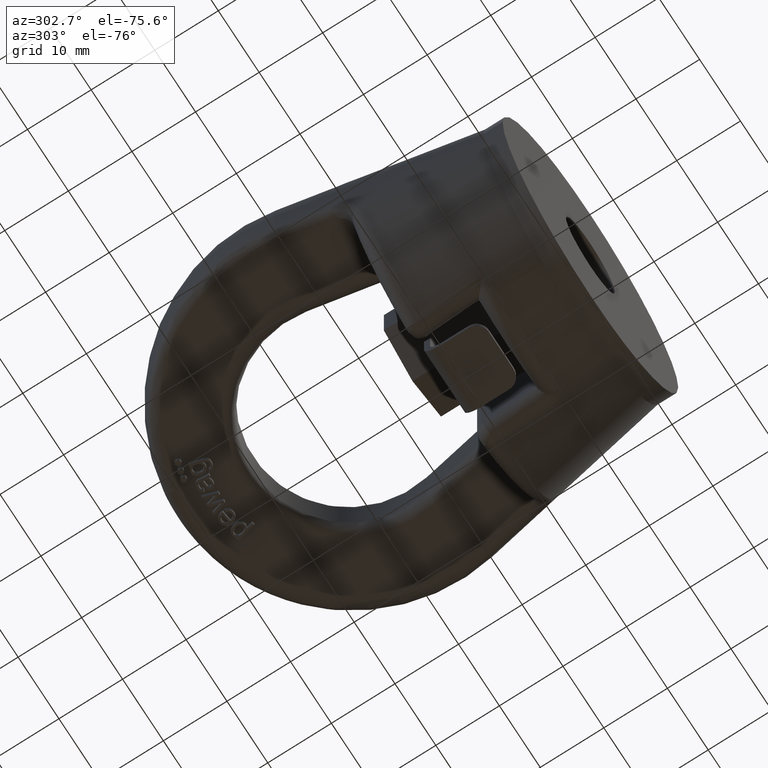
[diagram: clean part render]
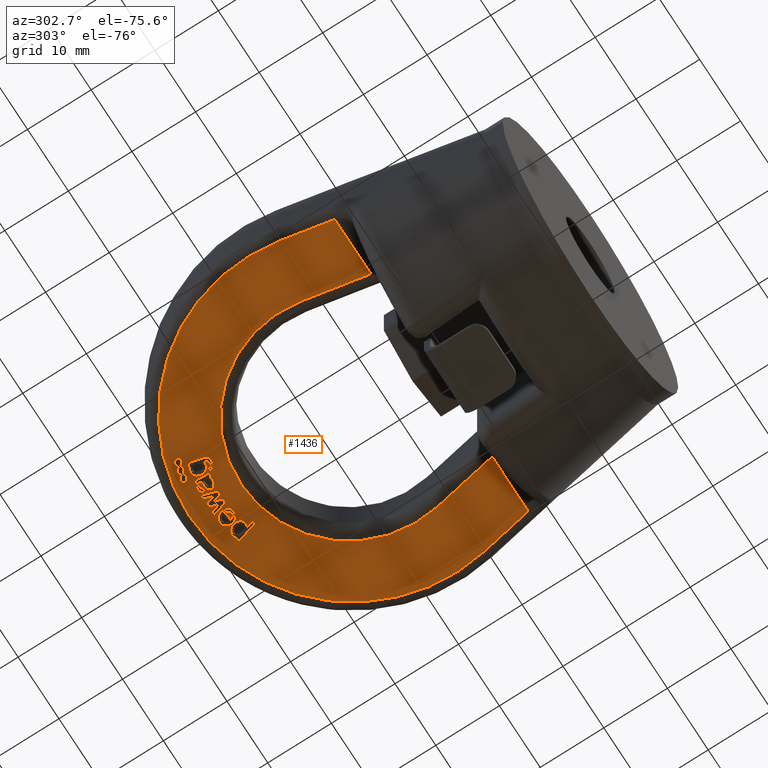
[diagram: same view with one face highlighted and labeled with its STEP entity id]
A machine part, auxiliary view. The second image highlights one B-rep face of the part: STEP entity #1436.
In plain terms, the highlighted planar face has unit normal (-0, -0, 1).
Its self-contained STEP definition (entity closure, byte-faithful):
#1436=ADVANCED_FACE('',(#1805,#1806,#1807,#1808,#1809,#1810,#1811,#1812,
#1813),#1615,.F.);
#1615=PLANE('',#5238);
#1721=CIRCLE('',#5233,0.449999999999999);
#1722=CIRCLE('',#5234,0.449999999999999);
#1723=CIRCLE('',#5235,0.449999999999999);
#1724=CIRCLE('',#5236,17.);
#1725=CIRCLE('',#5237,25.6076160546038);
#1805=FACE_BOUND('',#1962,.T.);
#1806=FACE_BOUND('',#1963,.T.);
#1807=FACE_BOUND('',#1964,.T.);
#1808=FACE_BOUND('',#1965,.T.);
#1809=FACE_BOUND('',#1966,.T.);
#1810=FACE_BOUND('',#1967,.T.);
#1811=FACE_BOUND('',#1968,.T.);
#1812=FACE_BOUND('',#1969,.T.);
#1813=FACE_BOUND('',#1970,.T.);
#1962=EDGE_LOOP('',(#3263,#3264,#3265,#3266,#3267,#3268,#3269));
#1963=EDGE_LOOP('',(#3270,#3271,#3272,#3273,#3274,#3275,#3276,#3277,#3278,
#3279,#3280,#3281,#3282,#3283,#3284));
#1964=EDGE_LOOP('',(#3285,#3286,#3287,#3288,#3289));
#1965=EDGE_LOOP('',(#3290));
#1966=EDGE_LOOP('',(#3291));
#1967=EDGE_LOOP('',(#3292));
#1968=EDGE_LOOP('',(#3293,#3294,#3295,#3296,#3297,#3298,#3299,#3300));
#1969=EDGE_LOOP('',(#3301,#3302,#3303,#3304,#3305,#3306));
#1970=EDGE_LOOP('',(#3307,#3308,#3309,#3310,#3311,#3312,#3313,#3314,#3315));
#2234=LINE('',#8148,#2532);
#2235=LINE('',#8180,#2533);
#2236=LINE('',#8182,#2534);
#2237=LINE('',#8183,#2535);
#2238=LINE('',#8186,#2536);
#2239=LINE('',#8188,#2537);
#2240=LINE('',#8190,#2538);
#2241=LINE('',#8204,#2539);
#2242=LINE('',#8206,#2540);
#2243=LINE('',#8222,#2541);
#2244=LINE('',#8224,#2542);
#2245=LINE('',#8226,#2543);
#2246=LINE('',#8228,#2544);
#2247=LINE('',#8230,#2545);
#2248=LINE('',#8246,#2546);
#2249=LINE('',#8269,#2547);
#2250=LINE('',#8279,#2548);
#2251=LINE('',#8281,#2549);
#2252=LINE('',#8295,#2550);
#2253=LINE('',#8297,#2551);
#2254=LINE('',#8298,#2552);
#2255=LINE('',#8301,#2553);
#2256=LINE('',#8303,#2554);
#2257=LINE('',#8305,#2555);
#2258=LINE('',#8307,#2556);
#2259=LINE('',#8331,#2557);
#2260=LINE('',#8376,#2558);
#2532=VECTOR('',#5799,1.);
#2533=VECTOR('',#5800,1.);
#2534=VECTOR('',#5801,1.);
#2535=VECTOR('',#5802,1.);
#2536=VECTOR('',#5803,1.);
#2537=VECTOR('',#5804,1.);
#2538=VECTOR('',#5805,1.);
#2539=VECTOR('',#5806,1.);
#2540=VECTOR('',#5807,1.);
#2541=VECTOR('',#5808,1.);
#2542=VECTOR('',#5809,1.);
#2543=VECTOR('',#5810,1.);
#2544=VECTOR('',#5811,1.);
#2545=VECTOR('',#5812,1.);
#2546=VECTOR('',#5813,1.);
#2547=VECTOR('',#5814,1.);
#2548=VECTOR('',#5823,1.);
#2549=VECTOR('',#5824,1.);
#2550=VECTOR('',#5827,1.);
#2551=VECTOR('',#5828,1.);
#2552=VECTOR('',#5829,1.);
#2553=VECTOR('',#5830,1.);
#2554=VECTOR('',#5831,1.);
#2555=VECTOR('',#5832,1.);
#2556=VECTOR('',#5833,1.);
#2557=VECTOR('',#5834,1.);
#2558=VECTOR('',#5835,1.);
#3263=ORIENTED_EDGE('',*,*,#4554,.T.);
#3264=ORIENTED_EDGE('',*,*,#4555,.T.);
#3265=ORIENTED_EDGE('',*,*,#4556,.T.);
#3266=ORIENTED_EDGE('',*,*,#4557,.T.);
#3267=ORIENTED_EDGE('',*,*,#4558,.T.);
#3268=ORIENTED_EDGE('',*,*,#4559,.T.);
#3269=ORIENTED_EDGE('',*,*,#4560,.T.);
#3270=ORIENTED_EDGE('',*,*,#4561,.T.);
#3271=ORIENTED_EDGE('',*,*,#4562,.T.);
#3272=ORIENTED_EDGE('',*,*,#4563,.T.);
#3273=ORIENTED_EDGE('',*,*,#4564,.T.);
#3274=ORIENTED_EDGE('',*,*,#4565,.T.);
#3275=ORIENTED_EDGE('',*,*,#4566,.T.);
#3276=ORIENTED_EDGE('',*,*,#4567,.T.);
#3277=ORIENTED_EDGE('',*,*,#4568,.T.);
#3278=ORIENTED_EDGE('',*,*,#4569,.T.);
#3279=ORIENTED_EDGE('',*,*,#4570,.T.);
#3280=ORIENTED_EDGE('',*,*,#4571,.T.);
#3281=ORIENTED_EDGE('',*,*,#4572,.T.);
#3282=ORIENTED_EDGE('',*,*,#4573,.T.);
#3283=ORIENTED_EDGE('',*,*,#4574,.T.);
#3284=ORIENTED_EDGE('',*,*,#4575,.T.);
#3285=ORIENTED_EDGE('',*,*,#4576,.T.);
#3286=ORIENTED_EDGE('',*,*,#4577,.T.);
#3287=ORIENTED_EDGE('',*,*,#4578,.T.);
#3288=ORIENTED_EDGE('',*,*,#4579,.T.);
#3289=ORIENTED_EDGE('',*,*,#4580,.T.);
#3290=ORIENTED_EDGE('',*,*,#4581,.F.);
#3291=ORIENTED_EDGE('',*,*,#4582,.F.);
#3292=ORIENTED_EDGE('',*,*,#4583,.F.);
#3293=ORIENTED_EDGE('',*,*,#4584,.T.);
#3294=ORIENTED_EDGE('',*,*,#4585,.T.);
#3295=ORIENTED_EDGE('',*,*,#4586,.T.);
#3296=ORIENTED_EDGE('',*,*,#4587,.T.);
#3297=ORIENTED_EDGE('',*,*,#4588,.T.);
#3298=ORIENTED_EDGE('',*,*,#4589,.T.);
#3299=ORIENTED_EDGE('',*,*,#4590,.T.);
#3300=ORIENTED_EDGE('',*,*,#4591,.T.);
#3301=ORIENTED_EDGE('',*,*,#4592,.T.);
#3302=ORIENTED_EDGE('',*,*,#4593,.T.);
#3303=ORIENTED_EDGE('',*,*,#4594,.T.);
#3304=ORIENTED_EDGE('',*,*,#4595,.T.);
#3305=ORIENTED_EDGE('',*,*,#4596,.T.);
#3306=ORIENTED_EDGE('',*,*,#4597,.T.);
#3307=ORIENTED_EDGE('',*,*,#4598,.T.);
#3308=ORIENTED_EDGE('',*,*,#4599,.T.);
#3309=ORIENTED_EDGE('',*,*,#4600,.T.);
#3310=ORIENTED_EDGE('',*,*,#4601,.T.);
#3311=ORIENTED_EDGE('',*,*,#4602,.T.);
#3312=ORIENTED_EDGE('',*,*,#4603,.T.);
#3313=ORIENTED_EDGE('',*,*,#4604,.T.);
#3314=ORIENTED_EDGE('',*,*,#4605,.T.);
#3315=ORIENTED_EDGE('',*,*,#4606,.T.);
#4075=VERTEX_POINT('',#8141);
#4076=VERTEX_POINT('',#8142);
#4077=VERTEX_POINT('',#8147);
#4078=VERTEX_POINT('',#8149);
#4079=VERTEX_POINT('',#8162);
#4080=VERTEX_POINT('',#8179);
#4081=VERTEX_POINT('',#8181);
#4082=VERTEX_POINT('',#8184);
#4083=VERTEX_POINT('',#8185);
#4084=VERTEX_POINT('',#8187);
#4085=VERTEX_POINT('',#8189);
#4086=VERTEX_POINT('',#8191);
#4087=VERTEX_POINT('',#8198);
#4088=VERTEX_POINT('',#8203);
#4089=VERTEX_POINT('',#8205);
#4090=VERTEX_POINT('',#8207);
#4091=VERTEX_POINT('',#8214);
#4092=VERTEX_POINT('',#8221);
#4093=VERTEX_POINT('',#8223);
#4094=VERTEX_POINT('',#8225);
#4095=VERTEX_POINT('',#8227);
#4096=VERTEX_POINT('',#8229);
#4097=VERTEX_POINT('',#8239);
#4098=VERTEX_POINT('',#8240);
#4099=VERTEX_POINT('',#8245);
#4100=VERTEX_POINT('',#8247);
#4101=VERTEX_POINT('',#8268);
#4102=VERTEX_POINT('',#8271);
#4103=VERTEX_POINT('',#8273);
#4104=VERTEX_POINT('',#8275);
#4105=VERTEX_POINT('',#8277);
#4106=VERTEX_POINT('',#8278);
#4107=VERTEX_POINT('',#8280);
#4108=VERTEX_POINT('',#8282);
#4109=VERTEX_POINT('',#8287);
#4110=VERTEX_POINT('',#8289);
#4111=VERTEX_POINT('',#8294);
#4112=VERTEX_POINT('',#8296);
#4113=VERTEX_POINT('',#8299);
#4114=VERTEX_POINT('',#8300);
#4115=VERTEX_POINT('',#8302);
#4116=VERTEX_POINT('',#8304);
#4117=VERTEX_POINT('',#8306);
#4118=VERTEX_POINT('',#8308);
#4119=VERTEX_POINT('',#8332);
#4120=VERTEX_POINT('',#8333);
#4121=VERTEX_POINT('',#8338);
#4122=VERTEX_POINT('',#8355);
#4123=VERTEX_POINT('',#8362);
#4124=VERTEX_POINT('',#8375);
#4125=VERTEX_POINT('',#8377);
#4126=VERTEX_POINT('',#8382);
#4127=VERTEX_POINT('',#8395);
#4554=EDGE_CURVE('',#4075,#4076,#4979,.T.);
#4555=EDGE_CURVE('',#4076,#4077,#4980,.T.);
#4556=EDGE_CURVE('',#4077,#4078,#2234,.T.);
#4557=EDGE_CURVE('',#4078,#4079,#4981,.T.);
#4558=EDGE_CURVE('',#4079,#4080,#4982,.T.);
#4559=EDGE_CURVE('',#4080,#4081,#2235,.T.);
#4560=EDGE_CURVE('',#4081,#4075,#2236,.T.);
#4561=EDGE_CURVE('',#4082,#4083,#2237,.T.);
#4562=EDGE_CURVE('',#4083,#4084,#2238,.T.);
#4563=EDGE_CURVE('',#4084,#4085,#2239,.T.);
#4564=EDGE_CURVE('',#4085,#4086,#2240,.T.);
#4565=EDGE_CURVE('',#4086,#4087,#4983,.T.);
#4566=EDGE_CURVE('',#4087,#4088,#4984,.T.);
#4567=EDGE_CURVE('',#4088,#4089,#2241,.T.);
#4568=EDGE_CURVE('',#4089,#4090,#2242,.T.);
#4569=EDGE_CURVE('',#4090,#4091,#4985,.T.);
#4570=EDGE_CURVE('',#4091,#4092,#4986,.T.);
#4571=EDGE_CURVE('',#4092,#4093,#2243,.T.);
#4572=EDGE_CURVE('',#4093,#4094,#2244,.T.);
#4573=EDGE_CURVE('',#4094,#4095,#2245,.T.);
#4574=EDGE_CURVE('',#4095,#4096,#2246,.T.);
#4575=EDGE_CURVE('',#4096,#4082,#2247,.T.);
#4576=EDGE_CURVE('',#4097,#4098,#4987,.T.);
#4577=EDGE_CURVE('',#4098,#4099,#4988,.T.);
#4578=EDGE_CURVE('',#4099,#4100,#2248,.T.);
#4579=EDGE_CURVE('',#4100,#4101,#4989,.T.);
#4580=EDGE_CURVE('',#4101,#4097,#2249,.T.);
#4581=EDGE_CURVE('',#4102,#4102,#1721,.T.);
#4582=EDGE_CURVE('',#4103,#4103,#1722,.T.);
#4583=EDGE_CURVE('',#4104,#4104,#1723,.T.);
#4584=EDGE_CURVE('',#4105,#4106,#1724,.T.);
#4585=EDGE_CURVE('',#4106,#4107,#2250,.T.);
#4586=EDGE_CURVE('',#4107,#4108,#2251,.T.);
#4587=EDGE_CURVE('',#4108,#4109,#4990,.T.);
#4588=EDGE_CURVE('',#4109,#4110,#1725,.T.);
#4589=EDGE_CURVE('',#4110,#4111,#4991,.T.);
#4590=EDGE_CURVE('',#4111,#4112,#2252,.T.);
#4591=EDGE_CURVE('',#4112,#4105,#2253,.T.);
#4592=EDGE_CURVE('',#4113,#4114,#2254,.T.);
#4593=EDGE_CURVE('',#4114,#4115,#2255,.T.);
#4594=EDGE_CURVE('',#4115,#4116,#2256,.T.);
#4595=EDGE_CURVE('',#4116,#4117,#2257,.T.);
#4596=EDGE_CURVE('',#4117,#4118,#2258,.T.);
#4597=EDGE_CURVE('',#4118,#4113,#4992,.T.);
#4598=EDGE_CURVE('',#4119,#4120,#2259,.T.);
#4599=EDGE_CURVE('',#4120,#4121,#4993,.T.);
#4600=EDGE_CURVE('',#4121,#4122,#4994,.T.);
#4601=EDGE_CURVE('',#4122,#4123,#4995,.T.);
#4602=EDGE_CURVE('',#4123,#4124,#4996,.T.);
#4603=EDGE_CURVE('',#4124,#4125,#2260,.T.);
#4604=EDGE_CURVE('',#4125,#4126,#4997,.T.);
#4605=EDGE_CURVE('',#4126,#4127,#4998,.T.);
#4606=EDGE_CURVE('',#4127,#4119,#4999,.T.);
#4979=B_SPLINE_CURVE_WITH_KNOTS('',3,(#8129,#8130,#8131,#8132,#8133,#8134,
#8135,#8136,#8137,#8138,#8139,#8140),.UNSPECIFIED.,.F.,.F.,(4,2,2,2,2,4),
(0.,0.305645754892089,0.470829306249212,0.636012857606335,0.802206343843956,
1.),.UNSPECIFIED.);
#4980=B_SPLINE_CURVE_WITH_KNOTS('',3,(#8143,#8144,#8145,#8146),
 .UNSPECIFIED.,.F.,.F.,(4,4),(0.,1.),.UNSPECIFIED.);
#4981=B_SPLINE_CURVE_WITH_KNOTS('',3,(#8150,#8151,#8152,#8153,#8154,#8155,
#8156,#8157,#8158,#8159,#8160,#8161),.UNSPECIFIED.,.F.,.F.,(4,2,2,2,2,4),
(0.,0.16330465130929,0.382303784248535,0.619375661168202,0.856447538087869,
1.),.UNSPECIFIED.);
#4982=B_SPLINE_CURVE_WITH_KNOTS('',3,(#8163,#8164,#8165,#8166,#8167,#8168,
#8169,#8170,#8171,#8172,#8173,#8174,#8175,#8176,#8177,#8178),
 .UNSPECIFIED.,.F.,.F.,(4,2,2,2,2,2,2,4),(0.,0.139503666745453,0.312880428291717,
0.486257189837984,0.605370995480457,0.723854105689075,0.842337215897695,
1.),.UNSPECIFIED.);
#4983=B_SPLINE_CURVE_WITH_KNOTS('',3,(#8192,#8193,#8194,#8195,#8196,#8197),
 .UNSPECIFIED.,.F.,.F.,(4,2,4),(0.,0.728909607654982,1.),.UNSPECIFIED.);
#4984=B_SPLINE_CURVE_WITH_KNOTS('',3,(#8199,#8200,#8201,#8202),
 .UNSPECIFIED.,.F.,.F.,(4,4),(0.,1.),.UNSPECIFIED.);
#4985=B_SPLINE_CURVE_WITH_KNOTS('',3,(#8208,#8209,#8210,#8211,#8212,#8213),
 .UNSPECIFIED.,.F.,.F.,(4,2,4),(0.,0.752082276025112,1.),.UNSPECIFIED.);
#4986=B_SPLINE_CURVE_WITH_KNOTS('',3,(#8215,#8216,#8217,#8218,#8219,#8220),
 .UNSPECIFIED.,.F.,.F.,(4,2,4),(0.,0.250451922487261,1.),.UNSPECIFIED.);
#4987=B_SPLINE_CURVE_WITH_KNOTS('',3,(#8231,#8232,#8233,#8234,#8235,#8236,
#8237,#8238),.UNSPECIFIED.,.F.,.F.,(4,2,2,4),(0.,0.363477968613208,0.728087675912438,
1.),.UNSPECIFIED.);
#4988=B_SPLINE_CURVE_WITH_KNOTS('',3,(#8241,#8242,#8243,#8244),
 .UNSPECIFIED.,.F.,.F.,(4,4),(0.,1.),.UNSPECIFIED.);
#4989=B_SPLINE_CURVE_WITH_KNOTS('',3,(#8248,#8249,#8250,#8251,#8252,#8253,
#8254,#8255,#8256,#8257,#8258,#8259,#8260,#8261,#8262,#8263,#8264,#8265,
#8266,#8267),.UNSPECIFIED.,.F.,.F.,(4,2,2,2,2,2,2,2,2,4),(0.,0.102921203122038,
0.206156274885323,0.336063021724227,0.465707475917726,0.599570296299733,
0.733433116681743,0.862845255056167,0.992257393430589,1.),.UNSPECIFIED.);
#4990=B_SPLINE_CURVE_WITH_KNOTS('',3,(#8283,#8284,#8285,#8286),
 .UNSPECIFIED.,.F.,.F.,(4,4),(0.,1.),.UNSPECIFIED.);
#4991=B_SPLINE_CURVE_WITH_KNOTS('',3,(#8290,#8291,#8292,#8293),
 .UNSPECIFIED.,.F.,.F.,(4,4),(0.,1.),.UNSPECIFIED.);
#4992=B_SPLINE_CURVE_WITH_KNOTS('',3,(#8309,#8310,#8311,#8312,#8313,#8314,
#8315,#8316,#8317,#8318,#8319,#8320,#8321,#8322,#8323,#8324,#8325,#8326,
#8327,#8328,#8329,#8330),.UNSPECIFIED.,.F.,.F.,(4,2,2,2,2,2,2,2,2,2,4),
(0.,0.0830854503763822,0.165678296755067,0.27327222095649,0.380460889370517,
0.48724868604668,0.60194668988404,0.717055250849195,0.831909514623423,0.915821305508703,
1.),.UNSPECIFIED.);
#4993=B_SPLINE_CURVE_WITH_KNOTS('',3,(#8334,#8335,#8336,#8337),
 .UNSPECIFIED.,.F.,.F.,(4,4),(0.,1.),.UNSPECIFIED.);
#4994=B_SPLINE_CURVE_WITH_KNOTS('',3,(#8339,#8340,#8341,#8342,#8343,#8344,
#8345,#8346,#8347,#8348,#8349,#8350,#8351,#8352,#8353,#8354),
 .UNSPECIFIED.,.F.,.F.,(4,2,2,2,2,2,2,4),(0.,0.121639465164565,0.243930904991194,
0.445161792748239,0.646392680505284,0.76356509616128,0.881519242448374,
1.),.UNSPECIFIED.);
#4995=B_SPLINE_CURVE_WITH_KNOTS('',3,(#8356,#8357,#8358,#8359,#8360,#8361),
 .UNSPECIFIED.,.F.,.F.,(4,2,4),(0.,0.329344693449401,1.),.UNSPECIFIED.);
#4996=B_SPLINE_CURVE_WITH_KNOTS('',3,(#8363,#8364,#8365,#8366,#8367,#8368,
#8369,#8370,#8371,#8372,#8373,#8374),.UNSPECIFIED.,.F.,.F.,(4,2,2,2,2,4),
(0.,0.0173977322142901,0.217983350684955,0.490675035316424,0.745337517658206,
1.),.UNSPECIFIED.);
#4997=B_SPLINE_CURVE_WITH_KNOTS('',3,(#8378,#8379,#8380,#8381),
 .UNSPECIFIED.,.F.,.F.,(4,4),(0.,1.),.UNSPECIFIED.);
#4998=B_SPLINE_CURVE_WITH_KNOTS('',3,(#8383,#8384,#8385,#8386,#8387,#8388,
#8389,#8390,#8391,#8392,#8393,#8394),.UNSPECIFIED.,.F.,.F.,(4,2,2,2,2,4),
(0.,0.201730292707493,0.402155128097317,0.601755169925865,0.800199545078051,
1.),.UNSPECIFIED.);
#4999=B_SPLINE_CURVE_WITH_KNOTS('',3,(#8396,#8397,#8398,#8399,#8400,#8401,
#8402,#8403,#8404,#8405),.UNSPECIFIED.,.F.,.F.,(4,2,2,2,4),(0.,0.161403604805127,
0.32305979741119,0.661780038481084,1.),.UNSPECIFIED.);
#5233=AXIS2_PLACEMENT_3D('',#8270,#5815,#5816);
#5234=AXIS2_PLACEMENT_3D('',#8272,#5817,#5818);
#5235=AXIS2_PLACEMENT_3D('',#8274,#5819,#5820);
#5236=AXIS2_PLACEMENT_3D('',#8276,#5821,#5822);
#5237=AXIS2_PLACEMENT_3D('',#8288,#5825,#5826);
#5238=AXIS2_PLACEMENT_3D('',#8406,#5836,#5837);
#5799=DIRECTION('',(-0.926036898244068,-0.377432991523669,-2.21998654380677E-15));
#5800=DIRECTION('',(-0.240441711768671,0.970663578816961,-4.33807858745518E-16));
#5801=DIRECTION('',(-0.970663578816965,-0.240441711768658,-2.30626271952841E-15));
#5802=DIRECTION('',(0.25867588301808,-0.965964175083536,4.7715598389392E-16));
#5803=DIRECTION('',(0.999999995678886,9.29635859875706E-5,2.34292312412683E-15));
#5804=DIRECTION('',(0.297319028478967,0.954778191678216,8.23997798997137E-16));
#5805=DIRECTION('',(-0.999999995678886,-9.29635860091688E-5,-2.34292312412684E-15));
#5806=DIRECTION('',(-0.266687759387681,0.963782983348834,-4.96218153809294E-16));
#5807=DIRECTION('',(-0.999999995678886,-9.29635860331523E-5,-2.34292312412684E-15));
#5808=DIRECTION('',(-0.999999995678886,-9.29635860446151E-5,-2.34292312412684E-15));
#5809=DIRECTION('',(0.303109223404765,-0.952955822001713,5.82995171931976E-16));
#5810=DIRECTION('',(0.999999995678886,9.29635860567027E-5,2.34292312412684E-15));
#5811=DIRECTION('',(0.260553429481472,0.965459429694197,7.3928458989856E-16));
#5812=DIRECTION('',(0.226101851815541,0.974103666251998,6.5972110818598E-16));
#5813=DIRECTION('',(-0.999955648987409,0.0094180708305311,-2.34155006881194E-15));
#5814=DIRECTION('',(0.991600377783164,-0.129339440157618,2.30597207467451E-15));
#5815=DIRECTION('',(2.34291072916505E-15,1.33440267382831E-16,-1.));
#5816=DIRECTION('',(0.,0.999999999999999,0.));
#5817=DIRECTION('',(2.34291072916505E-15,1.33440267382831E-16,-1.));
#5818=DIRECTION('',(0.,0.999999999999999,0.));
#5819=DIRECTION('',(2.34291072916505E-15,1.33440267382831E-16,-1.));
#5820=DIRECTION('',(0.,0.999999999999999,0.));
#5821=DIRECTION('',(-2.34291072916505E-15,-1.33440267382831E-16,1.));
#5822=DIRECTION('',(-3.62527989531715E-31,1.,1.53063836115601E-16));
#5823=DIRECTION('',(0.184626416135144,-0.982808774108724,3.0141694564706E-16));
#5824=DIRECTION('',(-1.,-6.37234096263326E-16,-2.34291072916505E-15));
#5825=DIRECTION('',(2.34291072916505E-15,1.33440267382831E-16,-1.));
#5826=DIRECTION('',(-3.61004464974269E-31,1.,1.35484964494767E-16));
#5827=DIRECTION('',(-1.,-6.37234096263326E-16,-2.34291072916505E-15));
#5828=DIRECTION('',(0.184626416135144,0.982808774108724,5.63709476853581E-16));
#5829=DIRECTION('',(-0.24026123487932,-0.970708266686889,-6.92442195658625E-16));
#5830=DIRECTION('',(0.970708266686883,-0.240261234879344,2.24222228948588E-15));
#5831=DIRECTION('',(0.240261234879318,0.970708266686889,6.92442195658621E-16));
#5832=DIRECTION('',(-0.970708266686888,0.240261234879322,-2.24222228948589E-15));
#5833=DIRECTION('',(-0.240261234879318,-0.970708266686889,-6.92442195658621E-16));
#5834=DIRECTION('',(0.991576312927648,0.129523803375332,2.34045847329895E-15));
#5835=DIRECTION('',(0.965560779386236,0.260177595713091,2.29694087762396E-15));
#5836=DIRECTION('',(-2.34291072916505E-15,-1.33440267382831E-16,1.));
#5837=DIRECTION('',(0.,1.,1.33573707650214E-16));
#8129=CARTESIAN_POINT('',(-6.20575754336817,59.3063757401385,-6.00000000000002));
#8130=CARTESIAN_POINT('',(-6.05518161335801,58.6985004674489,-6.00000000000002));
#8131=CARTESIAN_POINT('',(-5.90460568334785,58.0906251947592,-6.00000000000002));
#8132=CARTESIAN_POINT('',(-5.67265232057485,57.1542290945497,-6.00000000000001));
#8133=CARTESIAN_POINT('',(-5.5809698240465,56.9302553745607,-6.00000000000001));
#8134=CARTESIAN_POINT('',(-5.37662564480681,56.6899122592701,-6.00000000000001));
#8135=CARTESIAN_POINT('',(-5.2420504243621,56.6078121137664,-6.00000000000001));
#8136=CARTESIAN_POINT('',(-4.90781318724154,56.5224743446232,-6.00000000000001));
#8137=CARTESIAN_POINT('',(-4.71619275367271,56.5277574319655,-6.00000000000001));
#8138=CARTESIAN_POINT('',(-4.24472578209141,56.6445438532996,-6.00000000000001));
#8139=CARTESIAN_POINT('',(-4.0518199735008,56.7524180364342,-6.00000000000001));
#8140=CARTESIAN_POINT('',(-3.92220745020137,56.904703685001,-6.00000000000001));
#8141=CARTESIAN_POINT('',(-6.20575754336817,59.3063757401385,-6.00000000000002));
#8142=CARTESIAN_POINT('',(-3.92220745020137,56.904703685001,-6.00000000000001));
#8143=CARTESIAN_POINT('',(-3.92220745020137,56.904703685001,-6.00000000000001));
#8144=CARTESIAN_POINT('',(-3.79259492690195,57.0569893335678,-6.00000000000001));
#8145=CARTESIAN_POINT('',(-3.75905359406857,57.2463577334012,-6.00000000000001));
#8146=CARTESIAN_POINT('',(-3.82064093689039,57.4722516988339,-6.00000000000001));
#8147=CARTESIAN_POINT('',(-3.82064093689039,57.4722516988339,-6.00000000000001));
#8148=CARTESIAN_POINT('',(-19.7155860339691,50.9938093284806,-6.00000000000005));
#8149=CARTESIAN_POINT('',(-4.16188763482528,57.3331667851621,-6.00000000000001));
#8150=CARTESIAN_POINT('',(-4.16188763482528,57.3331667851621,-6.00000000000001));
#8151=CARTESIAN_POINT('',(-4.1497171360946,57.2223272473401,-6.00000000000001));
#8152=CARTESIAN_POINT('',(-4.17127277304765,57.1339689886217,-6.00000000000001));
#8153=CARTESIAN_POINT('',(-4.30068997402487,56.9797479153108,-6.00000000000001));
#8154=CARTESIAN_POINT('',(-4.41576405205717,56.9160661145281,-6.00000000000001));
#8155=CARTESIAN_POINT('',(-4.74093982506099,56.8355172805211,-6.00000000000001));
#8156=CARTESIAN_POINT('',(-4.87867463331529,56.8361879908635,-6.00000000000001));
#8157=CARTESIAN_POINT('',(-5.09495334067751,56.923350430372,-6.00000000000001));
#8158=CARTESIAN_POINT('',(-5.18017431618492,57.0010722981359,-6.00000000000001));
#8159=CARTESIAN_POINT('',(-5.2786893367955,57.1797755599088,-6.00000000000001));
#8160=CARTESIAN_POINT('',(-5.32549224742334,57.3311489177058,-6.00000000000001));
#8161=CARTESIAN_POINT('',(-5.38173395548938,57.5646922803139,-6.00000000000001));
#8162=CARTESIAN_POINT('',(-5.38173395548938,57.5646922803139,-6.00000000000001));
#8163=CARTESIAN_POINT('',(-5.38173395548938,57.5646922803139,-6.00000000000001));
#8164=CARTESIAN_POINT('',(-5.17679373082311,57.4193753730725,-6.00000000000001));
#8165=CARTESIAN_POINT('',(-4.95626241217821,57.3767523497323,-6.00000000000001));
#8166=CARTESIAN_POINT('',(-4.42415660180832,57.5085595326528,-6.00000000000001));
#8167=CARTESIAN_POINT('',(-4.22107909102038,57.6695552338382,-6.00000000000001));
#8168=CARTESIAN_POINT('',(-4.00188275567911,58.1681999844469,-6.00000000000001));
#8169=CARTESIAN_POINT('',(-3.98296469165896,58.439336781128,-6.00000000000001));
#8170=CARTESIAN_POINT('',(-4.10530763479221,58.9332354401884,-6.00000000000001));
#8171=CARTESIAN_POINT('',(-4.18839672572244,59.1095265753095,-6.00000000000001));
#8172=CARTESIAN_POINT('',(-4.42085924575848,59.4131047639506,-6.00000000000001));
#8173=CARTESIAN_POINT('',(-4.56082942679885,59.5185468657608,-6.00000000000001));
#8174=CARTESIAN_POINT('',(-4.88856330001202,59.6334467307898,-6.00000000000001));
#8175=CARTESIAN_POINT('',(-5.06542948324848,59.6394467022554,-6.00000000000001));
#8176=CARTESIAN_POINT('',(-5.50885099189005,59.529607383155,-6.00000000000001));
#8177=CARTESIAN_POINT('',(-5.6923855412168,59.3774059149407,-6.00000000000001));
#8178=CARTESIAN_POINT('',(-5.8068609440868,59.1347819534282,-6.00000000000001));
#8179=CARTESIAN_POINT('',(-5.8068609440868,59.1347819534282,-6.00000000000002));
#8180=CARTESIAN_POINT('',(-10.879365541723,79.6124912081522,-6.00000000000002));
#8181=CARTESIAN_POINT('',(-5.86996997357635,59.3895532074231,-6.00000000000002));
#8182=CARTESIAN_POINT('',(-24.4906044318537,54.7770619992711,-6.00000000000006));
#8183=CARTESIAN_POINT('',(-5.79504030827169,81.3479594154054,-6.00000000000001));
#8184=CARTESIAN_POINT('',(0.0096987489185673,59.6715282400953,-6.));
#8185=CARTESIAN_POINT('',(0.457306471073097,58.0000425992719,-6.));
#8186=CARTESIAN_POINT('',(-29.4984193641073,57.9972578075654,-6.00000000000007));
#8187=CARTESIAN_POINT('',(0.848534425392183,58.0000789692257,-6.));
#8188=CARTESIAN_POINT('',(2.99159722450602,64.882079204658,-5.99999999999999));
#8189=CARTESIAN_POINT('',(1.52536757645236,60.1735877935451,-6.));
#8190=CARTESIAN_POINT('',(-29.4986214154313,60.1707036922636,-6.00000000000007));
#8191=CARTESIAN_POINT('',(1.13804409273526,60.1735517865649,-6.));
#8192=CARTESIAN_POINT('',(1.13804409273526,60.1735517865649,-6.));
#8193=CARTESIAN_POINT('',(1.02068856010013,59.7552753339073,-6.));
#8194=CARTESIAN_POINT('',(0.903333027464997,59.3369988812496,-6.));
#8195=CARTESIAN_POINT('',(0.74233153783903,58.7631603033725,-6.));
#8196=CARTESIAN_POINT('',(0.698546272178976,58.607637297537,-6.));
#8197=CARTESIAN_POINT('',(0.654830660853532,58.4520947320095,-6.));
#8198=CARTESIAN_POINT('',(0.654830660853532,58.4520947320095,-6.));
#8199=CARTESIAN_POINT('',(0.654830660853532,58.4520947320095,-6.));
#8200=CARTESIAN_POINT('',(0.649362261636551,58.4751180149979,-6.));
#8201=CARTESIAN_POINT('',(0.611084537304787,58.6247691003413,-6.));
#8202=CARTESIAN_POINT('',(0.540778453324445,58.9002806009293,-6.));
#8203=CARTESIAN_POINT('',(0.540778453324445,58.9002806009293,-6.));
#8204=CARTESIAN_POINT('',(-5.73388941644065,81.5763049258935,-6.00000000000001));
#8205=CARTESIAN_POINT('',(0.188476842332037,60.1734635113878,-6.));
#8206=CARTESIAN_POINT('',(-29.4986214154309,60.1707036922629,-6.00000000000007));
#8207=CARTESIAN_POINT('',(-0.196503959023874,60.1734277221918,-6.));
#8208=CARTESIAN_POINT('',(-0.196503959023874,60.1734277221918,-6.));
#8209=CARTESIAN_POINT('',(-0.306831254319944,59.7531053636731,-6.));
#8210=CARTESIAN_POINT('',(-0.417158549616014,59.3327830051544,-6.));
#8211=CARTESIAN_POINT('',(-0.563854328539524,58.773904845254,-6.));
#8212=CARTESIAN_POINT('',(-0.601384756255449,58.6356566407148,-6.));
#8213=CARTESIAN_POINT('',(-0.638334211927131,58.4972546377543,-6.));
#8214=CARTESIAN_POINT('',(-0.638334211927131,58.4972546377543,-6.));
#8215=CARTESIAN_POINT('',(-0.638334211927131,58.4972546377543,-6.));
#8216=CARTESIAN_POINT('',(-0.68051550314733,58.6371842038601,-6.));
#8217=CARTESIAN_POINT('',(-0.72269679436753,58.7771137699659,-6.));
#8218=CARTESIAN_POINT('',(-0.891117506819218,59.3358220630234,-6.));
#8219=CARTESIAN_POINT('',(-1.01744504657318,59.7545742218898,-6.));
#8220=CARTESIAN_POINT('',(-1.1437285270659,60.1733396647988,-6.));
#8221=CARTESIAN_POINT('',(-1.1437285270659,60.1733396647988,-6.));
#8222=CARTESIAN_POINT('',(-29.4986214154307,60.1707036922626,-6.00000000000007));
#8223=CARTESIAN_POINT('',(-1.50840608129148,60.1733057630654,-6.00000000000001));
#8224=CARTESIAN_POINT('',(-8.36282557731381,81.7231579642104,-6.00000000000002));
#8225=CARTESIAN_POINT('',(-0.81711273341544,57.9999241246921,-6.));
#8226=CARTESIAN_POINT('',(-29.4984193641062,57.9972578075634,-6.00000000000007));
#8227=CARTESIAN_POINT('',(-0.427446567337145,57.9999603494564,-6.));
#8228=CARTESIAN_POINT('',(1.87529730649064,66.5325894980421,-6.));
#8229=CARTESIAN_POINT('',(-0.0761652156463533,59.3016046768427,-6.));
#8230=CARTESIAN_POINT('',(1.87714697525323,67.7169650607209,-6.));
#8231=CARTESIAN_POINT('',(3.35202607716546,58.7329249638484,-5.99999999999999));
#8232=CARTESIAN_POINT('',(3.30721731521262,58.4980678234778,-5.99999999999999));
#8233=CARTESIAN_POINT('',(3.21545129474865,58.3258346853053,-5.99999999999999));
#8234=CARTESIAN_POINT('',(2.93757280277485,58.1062751302244,-5.99999999999999));
#8235=CARTESIAN_POINT('',(2.77644761183763,58.0634503873468,-5.99999999999999));
#8236=CARTESIAN_POINT('',(2.45742162968366,58.1050625557687,-5.99999999999999));
#8237=CARTESIAN_POINT('',(2.34583748267764,58.1552192305778,-5.99999999999999));
#8238=CARTESIAN_POINT('',(2.25817779759022,58.2378575086575,-5.99999999999999));
#8239=CARTESIAN_POINT('',(3.35202607716546,58.7329249638484,-5.99999999999999));
#8240=CARTESIAN_POINT('',(2.25817779759022,58.2378575086575,-5.99999999999999));
#8241=CARTESIAN_POINT('',(2.25817779759022,58.2378575086575,-5.99999999999999));
#8242=CARTESIAN_POINT('',(2.17139171021996,58.3211557996652,-5.99999999999999));
#8243=CARTESIAN_POINT('',(2.10932418724048,58.4430238006375,-5.99999999999999));
#8244=CARTESIAN_POINT('',(2.07294808917798,58.6048825378392,-5.99999999999999));
#8245=CARTESIAN_POINT('',(2.07294808917798,58.6048825378392,-6.));
#8246=CARTESIAN_POINT('',(-29.6516030069448,58.903679859093,-6.00000000000007));
#8247=CARTESIAN_POINT('',(1.68282294338977,58.6085569270579,-6.));
#8248=CARTESIAN_POINT('',(1.68282294338977,58.6085569270579,-6.));
#8249=CARTESIAN_POINT('',(1.71520918651607,58.3798840271064,-6.));
#8250=CARTESIAN_POINT('',(1.80515361616618,58.1940109670633,-6.));
#8251=CARTESIAN_POINT('',(2.10060867269325,57.907428210507,-6.));
#8252=CARTESIAN_POINT('',(2.30206258389828,57.8196123490717,-6.));
#8253=CARTESIAN_POINT('',(2.87739342064681,57.74456904534,-5.99999999999999));
#8254=CARTESIAN_POINT('',(3.14398164726294,57.8080896050236,-5.99999999999999));
#8255=CARTESIAN_POINT('',(3.57069974563823,58.1482984325685,-5.99999999999999));
#8256=CARTESIAN_POINT('',(3.70016305473674,58.4073419331851,-5.99999999999999));
#8257=CARTESIAN_POINT('',(3.79317230679175,59.1204114297183,-5.99999999999999));
#8258=CARTESIAN_POINT('',(3.73465635242914,59.4144094145965,-5.99999999999999));
#8259=CARTESIAN_POINT('',(3.40744448498656,59.8641926300338,-5.99999999999999));
#8260=CARTESIAN_POINT('',(3.17353434008079,59.9968655208889,-5.99999999999999));
#8261=CARTESIAN_POINT('',(2.5780707957206,60.0745348352492,-5.99999999999999));
#8262=CARTESIAN_POINT('',(2.32522207183295,60.0076742415339,-6.));
#8263=CARTESIAN_POINT('',(1.9023217064693,59.6634715559914,-6.));
#8264=CARTESIAN_POINT('',(1.77346838062591,59.4001047771434,-6.));
#8265=CARTESIAN_POINT('',(1.72423402735025,59.0226421621162,-6.));
#8266=CARTESIAN_POINT('',(1.72074006147038,58.9898175882272,-6.));
#8267=CARTESIAN_POINT('',(1.71663075117233,58.946237827215,-6.));
#8268=CARTESIAN_POINT('',(1.71663075117233,58.946237827215,-6.));
#8269=CARTESIAN_POINT('',(-31.0367304024964,63.218423971765,-6.00000000000007));
#8270=CARTESIAN_POINT('',(-4.78698557238324,60.9051253899601,-6.00000000000001));
#8271=CARTESIAN_POINT('',(-4.78698557238324,61.3551253899601,-6.00000000000001));
#8272=CARTESIAN_POINT('',(-5.92590016139335,60.6372195129437,-6.00000000000002));
#8273=CARTESIAN_POINT('',(-5.92590016139335,61.0872195129437,-6.00000000000002));
#8274=CARTESIAN_POINT('',(-7.04999999999998,60.3127205871449,-6.00000000000002));
#8275=CARTESIAN_POINT('',(-7.04999999999998,60.7627205871449,-6.00000000000002));
#8276=CARTESIAN_POINT('',(1.40574643749903E-14,38.,-6.));
#8277=CARTESIAN_POINT('',(16.7077491598483,34.8613509257026,-5.99999999999997));
#8278=CARTESIAN_POINT('',(-16.7077491598483,34.8613509257025,-6.00000000000004));
#8279=CARTESIAN_POINT('',(-14.7858699942434,24.6307471677297,-6.00000000000004));
#8280=CARTESIAN_POINT('',(-14.8552363133746,25.,-6.00000000000004));
#8281=CARTESIAN_POINT('',(-29.5,25.,-6.00000000000008));
#8282=CARTESIAN_POINT('',(-23.6828579675545,25.,-6.00000000000006));
#8283=CARTESIAN_POINT('',(-23.6828579675545,25.,-6.00000000000006));
#8284=CARTESIAN_POINT('',(-24.1736123577443,27.5664787803632,-6.00000000000006));
#8285=CARTESIAN_POINT('',(-24.6638557242363,30.133055313388,-6.00000000000006));
#8286=CARTESIAN_POINT('',(-25.1536726235038,32.6997131804862,-6.00000000000006));
#8287=CARTESIAN_POINT('',(-25.1536726235038,32.6997131804862,-6.00000000000006));
#8288=CARTESIAN_POINT('',(1.40574643749903E-14,37.5,-6.00000000000001));
#8289=CARTESIAN_POINT('',(25.1536726235038,32.6997131804864,-5.99999999999995));
#8290=CARTESIAN_POINT('',(25.1536726235038,32.6997131804864,-5.99999999999995));
#8291=CARTESIAN_POINT('',(24.6638557242364,30.1330553133881,-5.99999999999995));
#8292=CARTESIAN_POINT('',(24.1736123577445,27.5664787803633,-5.99999999999995));
#8293=CARTESIAN_POINT('',(23.6828579675547,25.,-5.99999999999995));
#8294=CARTESIAN_POINT('',(23.6828579675547,25.,-5.99999999999995));
#8295=CARTESIAN_POINT('',(-29.5,25.,-6.00000000000008));
#8296=CARTESIAN_POINT('',(14.8552363133746,25.,-5.99999999999997));
#8297=CARTESIAN_POINT('',(16.7077491598483,34.8613509257025,-5.99999999999997));
#8298=CARTESIAN_POINT('',(7.44068770355339,65.8567635101743,-5.99999999999998));
#8299=CARTESIAN_POINT('',(5.37356803578884,57.5051451114011,-5.99999999999999));
#8300=CARTESIAN_POINT('',(5.11947748961563,56.4785633834697,-5.99999999999999));
#8301=CARTESIAN_POINT('',(-31.8212102139378,65.6217998732964,-6.00000000000008));
#8302=CARTESIAN_POINT('',(5.48332727266478,56.3885064619558,-5.99999999999999));
#8303=CARTESIAN_POINT('',(7.80453748660255,65.7667065886604,-5.99999999999998));
#8304=CARTESIAN_POINT('',(6.20558610384075,59.3065910978825,-5.99999999999999));
#8305=CARTESIAN_POINT('',(-31.0989513827618,68.5398845092223,-6.00000000000007));
#8306=CARTESIAN_POINT('',(5.87433119718975,59.3885804201775,-5.99999999999999));
#8307=CARTESIAN_POINT('',(7.47328257995154,65.8486959109554,-5.99999999999998));
#8308=CARTESIAN_POINT('',(5.80647537644102,59.1144279703381,-5.99999999999999));
#8309=CARTESIAN_POINT('',(5.80647537644102,59.1144279703381,-5.99999999999999));
#8310=CARTESIAN_POINT('',(5.75495155484601,59.2410297303356,-5.99999999999999));
#8311=CARTESIAN_POINT('',(5.68617737849099,59.3434388891467,-5.99999999999999));
#8312=CARTESIAN_POINT('',(5.5161498922752,59.4990341426942,-5.99999999999999));
#8313=CARTESIAN_POINT('',(5.40327322657238,59.5557721466986,-5.99999999999999));
#8314=CARTESIAN_POINT('',(5.08035654411625,59.6356976645422,-5.99999999999999));
#8315=CARTESIAN_POINT('',(4.90652356101996,59.6289143346052,-5.99999999999999));
#8316=CARTESIAN_POINT('',(4.58094141169124,59.5137955080985,-5.99999999999999));
#8317=CARTESIAN_POINT('',(4.44250948039674,59.4085408942253,-5.99999999999999));
#8318=CARTESIAN_POINT('',(4.21671123678242,59.1061589969592,-5.99999999999999));
#8319=CARTESIAN_POINT('',(4.13417431668668,58.9298432833883,-5.99999999999999));
#8320=CARTESIAN_POINT('',(4.03091545902558,58.5126547727631,-5.99999999999999));
#8321=CARTESIAN_POINT('',(4.02220651555314,58.308458961135,-5.99999999999999));
#8322=CARTESIAN_POINT('',(4.09481591643151,57.9245679397076,-5.99999999999999));
#8323=CARTESIAN_POINT('',(4.1768993389815,57.7633844212304,-5.99999999999999));
#8324=CARTESIAN_POINT('',(4.43106542570804,57.5046186971086,-5.99999999999999));
#8325=CARTESIAN_POINT('',(4.5777668867875,57.4198641346648,-5.99999999999999));
#8326=CARTESIAN_POINT('',(4.86505661132007,57.3487566903861,-5.99999999999999));
#8327=CARTESIAN_POINT('',(4.98048083402138,57.3470689163628,-5.99999999999999));
#8328=CARTESIAN_POINT('',(5.1980718838063,57.3993240197686,-5.99999999999999));
#8329=CARTESIAN_POINT('',(5.29241811034098,57.4437969487173,-5.99999999999999));
#8330=CARTESIAN_POINT('',(5.37356803578884,57.5051451114011,-5.99999999999999));
#8331=CARTESIAN_POINT('',(-26.8435605967734,54.6634879433383,-6.00000000000007));
#8332=CARTESIAN_POINT('',(-3.58663375078709,57.7014040176141,-6.00000000000001));
#8333=CARTESIAN_POINT('',(-3.19870137665284,57.7520773504632,-6.00000000000001));
#8334=CARTESIAN_POINT('',(-3.19870137665284,57.7520773504632,-6.00000000000001));
#8335=CARTESIAN_POINT('',(-3.16982659658713,57.8324730612366,-6.00000000000001));
#8336=CARTESIAN_POINT('',(-3.15667878401665,57.924746080848,-6.00000000000001));
#8337=CARTESIAN_POINT('',(-3.15905913034065,58.0273744195614,-6.00000000000001));
#8338=CARTESIAN_POINT('',(-3.15905913034065,58.0273744195614,-6.00000000000001));
#8339=CARTESIAN_POINT('',(-3.15905913034065,58.0273744195614,-6.00000000000001));
#8340=CARTESIAN_POINT('',(-3.00622081233109,57.9304678935984,-6.00000000000001));
#8341=CARTESIAN_POINT('',(-2.86317649634983,57.8663371311861,-6.00000000000001));
#8342=CARTESIAN_POINT('',(-2.5961610022582,57.804985142575,-6.00000000000001));
#8343=CARTESIAN_POINT('',(-2.45673919119489,57.7994608370121,-6.00000000000001));
#8344=CARTESIAN_POINT('',(-2.06958113317668,57.8500330254843,-6.00000000000001));
#8345=CARTESIAN_POINT('',(-1.89207430827169,57.9320421415375,-6.));
#8346=CARTESIAN_POINT('',(-1.66367163282642,58.1971668032911,-6.));
#8347=CARTESIAN_POINT('',(-1.61791351335013,58.3532959353351,-6.));
#8348=CARTESIAN_POINT('',(-1.65519012598692,58.6386690108131,-6.));
#8349=CARTESIAN_POINT('',(-1.69259258784641,58.7320787389794,-6.));
#8350=CARTESIAN_POINT('',(-1.813221657162,58.8933776515402,-6.));
#8351=CARTESIAN_POINT('',(-1.88633343651512,58.9552189168073,-6.));
#8352=CARTESIAN_POINT('',(-2.0583949501029,59.0397911232916,-6.00000000000001));
#8353=CARTESIAN_POINT('',(-2.15232649890042,59.0683038803388,-6.00000000000001));
#8354=CARTESIAN_POINT('',(-2.25501751656621,59.0827532153358,-6.00000000000001));
#8355=CARTESIAN_POINT('',(-2.25501751656621,59.0827532153358,-6.00000000000001));
#8356=CARTESIAN_POINT('',(-2.25501751656621,59.0827532153358,-6.00000000000001));
#8357=CARTESIAN_POINT('',(-2.33106265509879,59.0921693712247,-6.00000000000001));
#8358=CARTESIAN_POINT('',(-2.44340124678472,59.0960707465292,-6.00000000000001));
#8359=CARTESIAN_POINT('',(-2.89704863788278,59.0908648036648,-6.00000000000001));
#8360=CARTESIAN_POINT('',(-3.12396218816939,59.1031465128509,-6.00000000000001));
#8361=CARTESIAN_POINT('',(-3.2720239126274,59.1333407634184,-6.00000000000001));
#8362=CARTESIAN_POINT('',(-3.2720239126274,59.1333407634184,-6.00000000000001));
#8363=CARTESIAN_POINT('',(-3.2720239126274,59.1333407634184,-6.00000000000001));
#8364=CARTESIAN_POINT('',(-3.28013322868355,59.1833641359486,-6.00000000000001));
#8365=CARTESIAN_POINT('',(-3.28508252541491,59.2152247760252,-6.00000000000001));
#8366=CARTESIAN_POINT('',(-3.30625564139261,59.3773166828967,-6.00000000000001));
#8367=CARTESIAN_POINT('',(-3.28435489350527,59.4869866160121,-6.00000000000001));
#8368=CARTESIAN_POINT('',(-3.13868992424945,59.6521089641117,-6.00000000000001));
#8369=CARTESIAN_POINT('',(-3.00255586835916,59.7110994029469,-6.00000000000001));
#8370=CARTESIAN_POINT('',(-2.64017592605411,59.7584349713568,-6.00000000000001));
#8371=CARTESIAN_POINT('',(-2.50776268307784,59.7455461380799,-6.00000000000001));
#8372=CARTESIAN_POINT('',(-2.32480452255633,59.6471561343651,-6.00000000000001));
#8373=CARTESIAN_POINT('',(-2.24971694733838,59.5486072586319,-6.00000000000001));
#8374=CARTESIAN_POINT('',(-2.18947224493117,59.4009067977768,-6.00000000000001));
#8375=CARTESIAN_POINT('',(-2.18947224493117,59.4009067977768,-6.00000000000001));
#8376=CARTESIAN_POINT('',(-23.73252354398,53.5959700077042,-6.00000000000006));
#8377=CARTESIAN_POINT('',(-1.83267986173343,59.497047182112,-6.));
#8378=CARTESIAN_POINT('',(-1.83267986173343,59.497047182112,-6.));
#8379=CARTESIAN_POINT('',(-1.88595571909632,59.6456579423596,-6.));
#8380=CARTESIAN_POINT('',(-1.95626134387796,59.76185900458,-6.));
#8381=CARTESIAN_POINT('',(-2.0443710521944,59.8455492243962,-6.00000000000001));
#8382=CARTESIAN_POINT('',(-2.0443710521944,59.8455492243962,-6.));
#8383=CARTESIAN_POINT('',(-2.0443710521944,59.8455492243962,-6.));
#8384=CARTESIAN_POINT('',(-2.13180584869517,59.9301015834574,-6.));
#8385=CARTESIAN_POINT('',(-2.251202145707,59.9880335943857,-6.));
#8386=CARTESIAN_POINT('',(-2.55004918150762,60.0523746263478,-6.00000000000001));
#8387=CARTESIAN_POINT('',(-2.72000327563319,60.0560514211964,-6.00000000000001));
#8388=CARTESIAN_POINT('',(-3.09554659191086,60.0069963983784,-6.00000000000001));
#8389=CARTESIAN_POINT('',(-3.24442982594342,59.965103249327,-6.00000000000001));
#8390=CARTESIAN_POINT('',(-3.46784119110997,59.8479421048998,-6.00000000000001));
#8391=CARTESIAN_POINT('',(-3.54660690241501,59.7824454267029,-6.00000000000001));
#8392=CARTESIAN_POINT('',(-3.63977951711301,59.6366955088806,-6.00000000000001));
#8393=CARTESIAN_POINT('',(-3.66734298829151,59.5491861484381,-6.00000000000001));
#8394=CARTESIAN_POINT('',(-3.67590247189237,59.4459027833153,-6.00000000000001));
#8395=CARTESIAN_POINT('',(-3.67590247189237,59.4459027833153,-6.00000000000001));
#8396=CARTESIAN_POINT('',(-3.67590247189237,59.4459027833153,-6.00000000000001));
#8397=CARTESIAN_POINT('',(-3.68014037711905,59.3818828941131,-6.00000000000001));
#8398=CARTESIAN_POINT('',(-3.67172247389371,59.2692074935101,-6.00000000000001));
#8399=CARTESIAN_POINT('',(-3.62934310717153,58.9447700148111,-6.00000000000001));
#8400=CARTESIAN_POINT('',(-3.60813685642704,58.7824244429836,-6.00000000000001));
#8401=CARTESIAN_POINT('',(-3.5424968834195,58.2799141651863,-6.00000000000001));
#8402=CARTESIAN_POINT('',(-3.52220803187699,58.0643021686574,-6.00000000000001));
#8403=CARTESIAN_POINT('',(-3.5312632018164,57.8805950811579,-6.00000000000001));
#8404=CARTESIAN_POINT('',(-3.5509104482643,57.7896601259684,-6.00000000000001));
#8405=CARTESIAN_POINT('',(-3.58663375078709,57.7014040176141,-6.00000000000001));
#8406=CARTESIAN_POINT('',(-29.5,75.,-6.00000000000007));